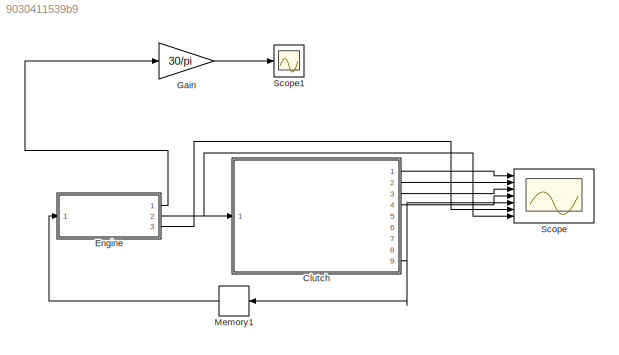
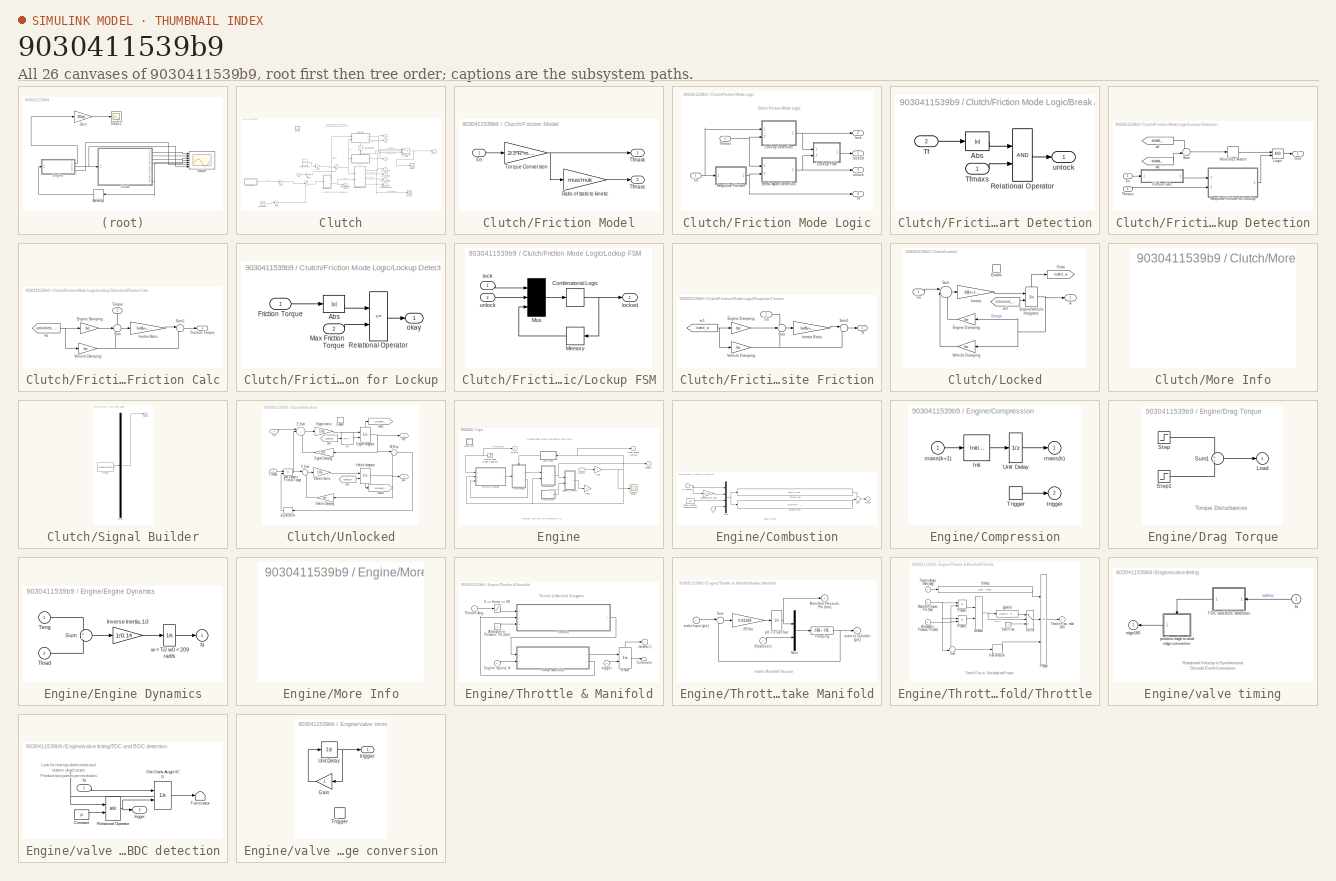
[diagram: thumbnail index - all 26 canvases of the model, root first then tree order]
MODEL slx_9030411539b9
KIND model
CONFIG AbsTol = 1e-7
CONFIG FixedStep = auto
CONFIG MaxStep = auto
CONFIG MinStep = auto
CONFIG PostLoadFcn = %sldemo_clutchplot\nsldemo_clutchparam
CONFIG PreLoadFcn = sldemo_clutchparam
CONFIG RelTol = 1e-6
CONFIG SampleTimeConstraint = Unconstrained
CONFIG Solver = ode23
CONFIG SolverMode = SingleTasking
CONFIG SolverName = ode23
CONFIG StartFcn = %sldemo_clutchplot Start\nsldemo_clutchparam
CONFIG StartTime = 0.0
CONFIG StopFcn = %if exist ('sldemo_clutch_output')\n  % sldemo_clutchplot Stop\n%end
CONFIG StopTime = 15
WORKSPACE source: MATLAB code (in-file)
WORKSPACE code: load sldemo_clutchparam.m;
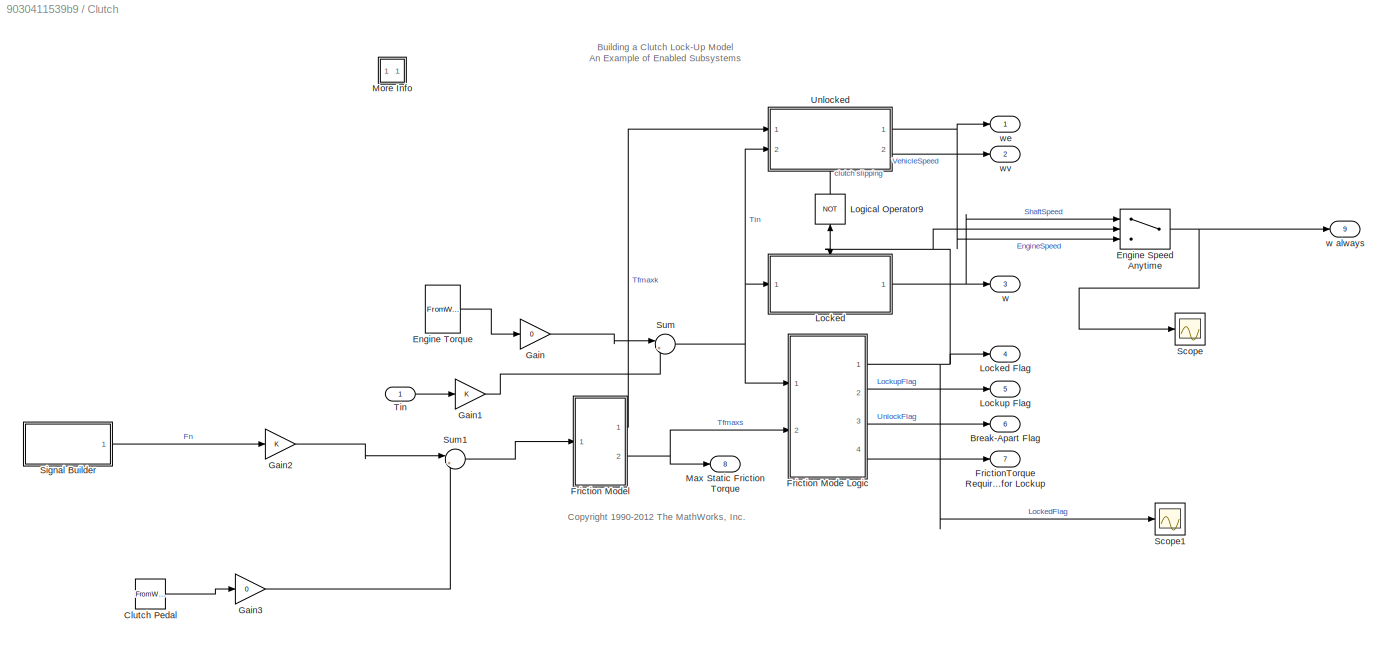
BLOCK [SubSystem] Clutch
  Ports = [1, 9]
  RequestExecContextInheritance = off
  TreatAsAtomicUnit = on
  Variant = off
BLOCK [Outport] Clutch/Break-Apart Flag
  IconDisplay = Port number
  InitialOutput = 0
  Port = 6
BLOCK [FromWorkspace] Clutch/Clutch Pedal
  SampleTime = 0
  VariableName = Fn
BLOCK [Switch] Clutch/Engine Speed Anytime
  Criteria = u2 > Threshold
  InputSameDT = off
  SaturateOnIntegerOverflow = off
BLOCK [FromWorkspace] Clutch/Engine Torque
  SampleTime = 0
  VariableName = Tin
BLOCK [SubSystem] Clutch/Friction Mode Logic
  Ports = [2, 4]
  RequestExecContextInheritance = off
  Variant = off
BLOCK [SubSystem] Clutch/Friction Mode Logic/Break Apart Detection
  Ports = [2, 1]
  RequestExecContextInheritance = off
  Variant = off
BLOCK [Abs] Clutch/Friction Mode Logic/Break Apart Detection/Abs
BLOCK [RelationalOperator] Clutch/Friction Mode Logic/Break Apart Detection/Relational Operator
  OutDataTypeStr = boolean
  Ports = [2, 1]
BLOCK [Inport] Clutch/Friction Mode Logic/Break Apart Detection/Tf
  IconDisplay = Port number
  Port = 2
BLOCK [Inport] Clutch/Friction Mode Logic/Break Apart Detection/Tfmaxs
  IconDisplay = Port number
BLOCK [Outport] Clutch/Friction Mode Logic/Break Apart Detection/unlock
  IconDisplay = Port number
  InitialOutput = 0
BLOCK [SubSystem] Clutch/Friction Mode Logic/Lockup Detection
  Ports = [2, 1]
  RequestExecContextInheritance = off
  Variant = off
BLOCK [SubSystem] Clutch/Friction Mode Logic/Lockup Detection/Friction Calc
  Ports = [1, 1]
  RequestExecContextInheritance = off
  Variant = off
BLOCK [Gain] Clutch/Friction Mode Logic/Lockup Detection/Friction Calc/Engine Damping
  Gain = be
BLOCK [Outport] Clutch/Friction Mode Logic/Lockup Detection/Friction Calc/Friction Torque
  IconDisplay = Port number
  InitialOutput = 0
BLOCK [Gain] Clutch/Friction Mode Logic/Lockup Detection/Friction Calc/Inertia Ratio
  Gain = Iv/(Iv+Ie)
BLOCK [Sum] Clutch/Friction Mode Logic/Lockup Detection/Friction Calc/Sum
  IconShape = round
  Inputs = +--
  Ports = [3, 1]
BLOCK [Sum] Clutch/Friction Mode Logic/Lockup Detection/Friction Calc/Sum1
  IconShape = round
  Inputs = |++
  Ports = [2, 1]
BLOCK [Inport] Clutch/Friction Mode Logic/Lockup Detection/Friction Calc/Torque
  IconDisplay = Port number
BLOCK [Gain] Clutch/Friction Mode Logic/Lockup Detection/Friction Calc/Vehicle Damping
  Gain = bv
BLOCK [From] Clutch/Friction Mode Logic/Lockup Detection/Friction Calc/w1
  GotoTag = unlocked_we
  TagVisibility = global
BLOCK [Logic] Clutch/Friction Mode Logic/Lockup Detection/Logic
  AttributesFormatString = (%<Operator>)
  IconShape = distinctive
  OutDataTypeStr = boolean
  Ports = [2, 1]
BLOCK [SubSystem] Clutch/Friction Mode Logic/Lockup Detection/Required Friction for Lockup
  Ports = [2, 1]
  RequestExecContextInheritance = off
  Variant = off
BLOCK [Abs] Clutch/Friction Mode Logic/Lockup Detection/Required Friction for Lockup/Abs
BLOCK [Inport] Clutch/Friction Mode Logic/Lockup Detection/Required Friction for Lockup/Friction Torque
  IconDisplay = Port number
BLOCK [Inport] Clutch/Friction Mode Logic/Lockup Detection/Required Friction for Lockup/Max Friction Torque
  IconDisplay = Port number
  Port = 2
BLOCK [RelationalOperator] Clutch/Friction Mode Logic/Lockup Detection/Required Friction for Lockup/Relational Operator
  Operator = <=
  OutDataTypeStr = boolean
  Ports = [2, 1]
BLOCK [Outport] Clutch/Friction Mode Logic/Lockup Detection/Required Friction for Lockup/okay
  IconDisplay = Port number
  InitialOutput = 0
BLOCK [Sum] Clutch/Friction Mode Logic/Lockup Detection/Sum
  IconShape = round
  Inputs = +-
  Ports = [2, 1]
BLOCK [Inport] Clutch/Friction Mode Logic/Lockup Detection/Tfmaxs
  IconDisplay = Port number
  Port = 2
BLOCK [Inport] Clutch/Friction Mode Logic/Lockup Detection/Tin
  IconDisplay = Port number
BLOCK [HitCross] Clutch/Friction Mode Logic/Lockup Detection/Velocities Match
  Ports = [1, 1]
BLOCK [Outport] Clutch/Friction Mode Logic/Lockup Detection/lock
  IconDisplay = Port number
  InitialOutput = 0
BLOCK [From] Clutch/Friction Mode Logic/Lockup Detection/w1
  GotoTag = unlocked_we
  TagVisibility = global
BLOCK [From] Clutch/Friction Mode Logic/Lockup Detection/w6
  GotoTag = unlocked_wv
  TagVisibility = global
BLOCK [SubSystem] Clutch/Friction Mode Logic/Lockup FSM
  Ports = [2, 1]
  RequestExecContextInheritance = off
  Variant = off
BLOCK [CombinatorialLogic] Clutch/Friction Mode Logic/Lockup FSM/Combinatorial Logic
  TruthTable = [0;1;0;0;1;1;1;0]
BLOCK [Memory] Clutch/Friction Mode Logic/Lockup FSM/Memory
BLOCK [Mux] Clutch/Friction Mode Logic/Lockup FSM/Mux
  Inputs = 3
  Ports = [3, 1]
BLOCK [Inport] Clutch/Friction Mode Logic/Lockup FSM/lock
  IconDisplay = Port number
BLOCK [Outport] Clutch/Friction Mode Logic/Lockup FSM/locked
  IconDisplay = Port number
  InitialOutput = 0
BLOCK [Inport] Clutch/Friction Mode Logic/Lockup FSM/unlock
  IconDisplay = Port number
  Port = 2
BLOCK [SubSystem] Clutch/Friction Mode Logic/Requisite Friction
  Ports = [1, 1]
  RequestExecContextInheritance = off
  Variant = off
BLOCK [Gain] Clutch/Friction Mode Logic/Requisite Friction/Engine Damping
  Gain = be
BLOCK [Gain] Clutch/Friction Mode Logic/Requisite Friction/Inertia Ratio
  Gain = Iv/(Iv+Ie)
BLOCK [Sum] Clutch/Friction Mode Logic/Requisite Friction/Sum
  IconShape = round
  Inputs = +--
  Ports = [3, 1]
BLOCK [Sum] Clutch/Friction Mode Logic/Requisite Friction/Sum1
  IconShape = round
  Inputs = |++
  Ports = [2, 1]
BLOCK [Outport] Clutch/Friction Mode Logic/Requisite Friction/Tf
  IconDisplay = Port number
  InitialOutput = 0
BLOCK [Inport] Clutch/Friction Mode Logic/Requisite Friction/Tin
  IconDisplay = Port number
BLOCK [Gain] Clutch/Friction Mode Logic/Requisite Friction/Vehicle Damping
  Gain = bv
BLOCK [From] Clutch/Friction Mode Logic/Requisite Friction/w1
  GotoTag = locked_w
  TagVisibility = global
BLOCK [Outport] Clutch/Friction Mode Logic/Tf
  IconDisplay = Port number
  InitialOutput = 0
  Port = 4
BLOCK [Inport] Clutch/Friction Mode Logic/Tfmaxs
  IconDisplay = Port number
  Port = 2
BLOCK [Inport] Clutch/Friction Mode Logic/Tin
  IconDisplay = Port number
BLOCK [Outport] Clutch/Friction Mode Logic/lock
  IconDisplay = Port number
  InitialOutput = 0
  Port = 2
BLOCK [Outport] Clutch/Friction Mode Logic/locked
  IconDisplay = Port number
  InitialOutput = 0
BLOCK [Outport] Clutch/Friction Mode Logic/unlock
  IconDisplay = Port number
  InitialOutput = 0
  Port = 3
BLOCK [SubSystem] Clutch/Friction Model
  Ports = [1, 2]
  RequestExecContextInheritance = off
  Variant = off
BLOCK [Inport] Clutch/Friction Model/Fn
  IconDisplay = Port number
BLOCK [Gain] Clutch/Friction Model/Ratio of static to kinetic
  Gain = mus/muk
BLOCK [Outport] Clutch/Friction Model/Tfmaxk
  IconDisplay = Port number
  InitialOutput = 0
BLOCK [Outport] Clutch/Friction Model/Tfmaxs
  IconDisplay = Port number
  InitialOutput = 0
  Port = 2
BLOCK [Gain] Clutch/Friction Model/Torque Conversion
  Gain = 2/3*R*muk
BLOCK [Outport] Clutch/FrictionTorque Required for Lockup
  IconDisplay = Port number
  InitialOutput = 0
  Port = 7
BLOCK [Gain] Clutch/Gain
  Gain = 0
  OutDataTypeStr = Inherit: Inherit via internal rule
  ParamDataTypeStr = Inherit: Inherit via internal rule
  SaturateOnIntegerOverflow = off
BLOCK [Gain] Clutch/Gain1
  OutDataTypeStr = Inherit: Inherit via internal rule
  ParamDataTypeStr = Inherit: Inherit via internal rule
  SaturateOnIntegerOverflow = off
BLOCK [Gain] Clutch/Gain2
  OutDataTypeStr = Inherit: Inherit via internal rule
  ParamDataTypeStr = Inherit: Inherit via internal rule
  SaturateOnIntegerOverflow = off
BLOCK [Gain] Clutch/Gain3
  Gain = 0
  OutDataTypeStr = Inherit: Inherit via internal rule
  ParamDataTypeStr = Inherit: Inherit via internal rule
  SaturateOnIntegerOverflow = off
BLOCK [SubSystem] Clutch/Locked
  Ports = [1, 1, 1]
  RequestExecContextInheritance = off
  TreatAsAtomicUnit = on
  Variant = off
BLOCK [Outport] Clutch/Locked Flag
  IconDisplay = Port number
  InitialOutput = 0
  Port = 4
BLOCK [EnablePort] Clutch/Locked/Enable
  Ports = []
  StatesWhenEnabling = reset
BLOCK [Gain] Clutch/Locked/Engine Damping
  Gain = be
BLOCK [Integrator] Clutch/Locked/Engine//Vehicle Integrator
  InitialConditionSource = external
  Ports = [2, 1, 0, 0, 1]
  ShowStatePort = on
BLOCK [Goto] Clutch/Locked/Goto
  GotoTag = locked_w
  TagVisibility = global
BLOCK [Gain] Clutch/Locked/Inertia
  Gain = 1/(Iv+Ie)
BLOCK [Sum] Clutch/Locked/Sum
  IconShape = round
  Inputs = ||+--
  Ports = [3, 1]
BLOCK [Inport] Clutch/Locked/Tin
  IconDisplay = Port number
BLOCK [Gain] Clutch/Locked/Vehicle Damping
  Gain = bv
BLOCK [Outport] Clutch/Locked/w
  IconDisplay = Port number
  InitialOutput = 0
BLOCK [From] Clutch/Locked/w0
  GotoTag = unlocked_we
  TagVisibility = global
BLOCK [Outport] Clutch/Lockup Flag
  IconDisplay = Port number
  InitialOutput = 0
  Port = 5
BLOCK [Logic] Clutch/Logical Operator9
  IconShape = distinctive
  Inputs = 1
  Operator = NOT
  OutDataTypeStr = boolean
  Ports = [1, 1]
BLOCK [Outport] Clutch/Max Static Friction Torque
  IconDisplay = Port number
  InitialOutput = 0
  Port = 8
BLOCK [SubSystem] Clutch/More Info
  OpenFcn = showdemo(bdroot(gcb))
  Ports = []
  RequestExecContextInheritance = off
  Variant = off
BLOCK [Scope] Clutch/Scope
  Ports = [1]
  ScopeSpecificationString = Simulink.scopes.TimeScopeBlockCfg('CurrentConfiguration', extmgr.ConfigurationSet(extmgr.Configuration('Core','General UI',true),extmgr.Configuration('Core','Source UI',true),extmgr.Configuration('Sources','WiredSimulink',true,'DataLoggingVariableName','ScopeData2'),extmgr.Configuration('Visuals','Time Domain',true,'SerializedDisplays',{struct('MinYLimReal','158.43083','MaxYLimReal','664.12255','Y...<+1418ch>
BLOCK [Scope] Clutch/Scope1
  Ports = [1]
  ScopeSpecificationString = Simulink.scopes.TimeScopeBlockCfg('CurrentConfiguration', extmgr.ConfigurationSet(extmgr.Configuration('Core','General UI',true),extmgr.Configuration('Core','Source UI',true),extmgr.Configuration('Sources','WiredSimulink',true,'DataLoggingVariableName','ScopeData3'),extmgr.Configuration('Visuals','Time Domain',true,'SerializedDisplays',{struct('MinYLimReal','-0.125','MaxYLimReal','1.125','YLabelRe...<+1383ch>
BLOCK [SubSystem] Clutch/Signal Builder
  ClipboardFcn = sigbuilder_block('clipboard');
  CloseFcn = sigbuilder_block('close');
  ContinueFcn = sigbuilder_block('continue');
  CopyFcn = sigbuilder_block('copy');
  DeleteFcn = sigbuilder_block('delete');
  LoadFcn = sigbuilder_block('load');
  MaskHideContents = on
  ModelCloseFcn = sigbuilder_block('modelClose');
  NameChangeFcn = sigbuilder_block('namechange');
  OpenFcn = sigbuilder_block('open',[6 30 1012.5 447.75 ]);
  PauseFcn = sigbuilder_block('pause');
  Ports = [0, 1]
  PreSaveFcn = sigbuilder_block('preSave');
  RequestExecContextInheritance = off
  StartFcn = sigbuilder_block('start');
  StopFcn = sigbuilder_block('stop');
  Tag = STV Subsys
  Variant = off
BLOCK [Demux] Clutch/Signal Builder/Demux
  Outputs = 1
  Ports = [1, 1]
  Tag = STV Demux
BLOCK [FromWorkspace] Clutch/Signal Builder/FromWs
  SampleTime = 0
  Tag = STV FromWs
  VariableName = tuvar
  ZeroCross = on
BLOCK [Outport] Clutch/Signal Builder/Signal 1
  IconDisplay = Port number
  Tag = STV Outport
BLOCK [Sum] Clutch/Sum
  IconShape = round
  InputSameDT = off
  Inputs = |++
  OutDataTypeStr = Inherit: Inherit via internal rule
  Ports = [2, 1]
  SaturateOnIntegerOverflow = off
BLOCK [Sum] Clutch/Sum1
  IconShape = round
  InputSameDT = off
  Inputs = |++
  OutDataTypeStr = Inherit: Inherit via internal rule
  Ports = [2, 1]
  SaturateOnIntegerOverflow = off
BLOCK [Inport] Clutch/Tin
  IconDisplay = Port number
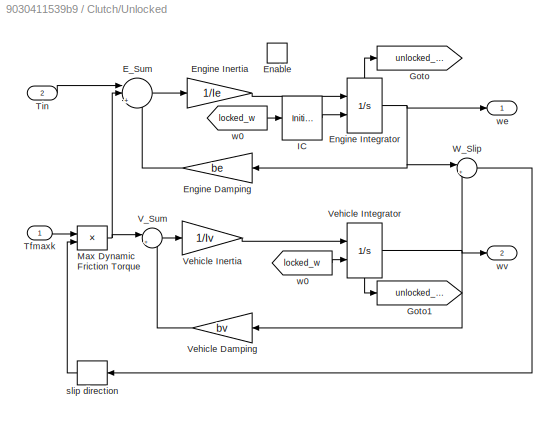
BLOCK [SubSystem] Clutch/Unlocked
  Ports = [2, 2, 1]
  RequestExecContextInheritance = off
  TreatAsAtomicUnit = on
  Variant = off
BLOCK [Sum] Clutch/Unlocked/E_Sum
  IconShape = round
  Inputs = ||+--
  Ports = [3, 1]
BLOCK [EnablePort] Clutch/Unlocked/Enable
  Ports = []
  StatesWhenEnabling = reset
BLOCK [Gain] Clutch/Unlocked/Engine Damping
  Gain = be
BLOCK [Gain] Clutch/Unlocked/Engine Inertia
  Gain = 1/Ie
BLOCK [Integrator] Clutch/Unlocked/Engine Integrator
  InitialConditionSource = external
  Ports = [2, 1, 0, 0, 1]
  ShowStatePort = on
BLOCK [Goto] Clutch/Unlocked/Goto
  GotoTag = unlocked_we
  TagVisibility = global
BLOCK [Goto] Clutch/Unlocked/Goto1
  GotoTag = unlocked_wv
  TagVisibility = global
BLOCK [InitialCondition] Clutch/Unlocked/IC
  Value = 209
BLOCK [Product] Clutch/Unlocked/Max Dynamic Friction Torque
  Ports = [2, 1]
BLOCK [Inport] Clutch/Unlocked/Tfmaxk
  IconDisplay = Port number
BLOCK [Inport] Clutch/Unlocked/Tin
  IconDisplay = Port number
  Port = 2
BLOCK [Sum] Clutch/Unlocked/V_Sum
  IconShape = round
  Inputs = |+-
  Ports = [2, 1]
BLOCK [Gain] Clutch/Unlocked/Vehicle Damping
  Gain = bv
BLOCK [Gain] Clutch/Unlocked/Vehicle Inertia
  Gain = 1/Iv
BLOCK [Integrator] Clutch/Unlocked/Vehicle Integrator
  InitialConditionSource = external
  Ports = [2, 1, 0, 0, 1]
  ShowStatePort = on
BLOCK [Sum] Clutch/Unlocked/W_Slip
  IconShape = round
  Inputs = |+-
  Ports = [2, 1]
BLOCK [Signum] Clutch/Unlocked/slip direction
BLOCK [From] Clutch/Unlocked/w0
  GotoTag = locked_w
  TagVisibility = global
BLOCK [From] Clutch/Unlocked/w0 
  GotoTag = locked_w
  TagVisibility = global
BLOCK [Outport] Clutch/Unlocked/we
  IconDisplay = Port number
  InitialOutput = 0
BLOCK [Outport] Clutch/Unlocked/wv
  IconDisplay = Port number
  InitialOutput = 0
  Port = 2
BLOCK [Outport] Clutch/w
  IconDisplay = Port number
  InitialOutput = 0
  Port = 3
BLOCK [Outport] Clutch/w always 
  IconDisplay = Port number
  InitialOutput = 0
  Port = 9
BLOCK [Outport] Clutch/we
  IconDisplay = Port number
  InitialOutput = 0
BLOCK [Outport] Clutch/wv
  IconDisplay = Port number
  InitialOutput = 0
  Port = 2
BLOCK [SubSystem] Engine
  Ports = [1, 3]
  RequestExecContextInheritance = off
  TreatAsAtomicUnit = on
  Variant = off
BLOCK [SubSystem] Engine/Combustion
  Ports = [2, 1]
  RequestExecContextInheritance = off
  Variant = off
BLOCK [Inport] Engine/Combustion/Air Charge
  IconDisplay = Port number
BLOCK [Mux] Engine/Combustion/Mux
  DisplayOption = bar
  Ports = [4, 1]
BLOCK [Inport] Engine/Combustion/N
  IconDisplay = Port number
  Port = 2
BLOCK [Constant] Engine/Combustion/Spark Advance (degrees BTDC)
  Value = 15.0
BLOCK [Gain] Engine/Combustion/Stoichiometric Fuel
  Gain = 1/14.6
BLOCK [Sum] Engine/Combustion/Sum
  IconShape = round
  Ports = [2, 1]
BLOCK [Outport] Engine/Combustion/Torque
  IconDisplay = Port number
  InitialOutput = 0
BLOCK [Fcn] Engine/Combustion/Torque Gen
  Expr = -181.3 + 379.36*u[1] + 21.91*u[1]/u[2] - (0.85*u[1]*u[1])/(u[2]*u[2]) + 0.26*u[3] - 0.0028*u[3]*u[3]
BLOCK [Fcn] Engine/Combustion/Torque Gen2
  Expr = 0.027*u[4] - 0.000107*u[4]*u[4] + 0.00048*u[4]*u[3] + 2.55*u[3]*u[1] - 0.05*u[3]*u[3]*u[1]
BLOCK [SubSystem] Engine/Compression
  Ports = [1, 2, 0, 1]
  RequestExecContextInheritance = off
  TreatAsAtomicUnit = on
  Variant = off
BLOCK [InitialCondition] Engine/Compression/Init
  Value = 0.152
BLOCK [TriggerPort] Engine/Compression/Trigger
  Ports = [0, 1]
  ShowOutputPort = on
  TriggerType = either
BLOCK [UnitDelay] Engine/Compression/Unit Delay
  InitialCondition = 0.152
  SampleTime = -1
BLOCK [Outport] Engine/Compression/mass(k)
  IconDisplay = Port number
  InitialOutput = 0.152
BLOCK [Inport] Engine/Compression/mass(k+1)
  IconDisplay = Port number
BLOCK [Outport] Engine/Compression/trigger
  IconDisplay = Port number
  InitialOutput = -1
  Port = 2
BLOCK [SubSystem] Engine/Drag Torque
  Ports = [0, 1]
  RequestExecContextInheritance = off
  Variant = off
BLOCK [Outport] Engine/Drag Torque/Load
  IconDisplay = Port number
  InitialOutput = 0
BLOCK [Step] Engine/Drag Torque/Step
  After = 20
  Before = 25
  SampleTime = 0
  Time = 2
BLOCK [Step] Engine/Drag Torque/Step1
  After = 5
  SampleTime = 0
  Time = 8
BLOCK [Sum] Engine/Drag Torque/Sum1
  IconShape = round
  Ports = [2, 1]
BLOCK [SubSystem] Engine/Engine Dynamics
  Ports = [2, 1]
  RequestExecContextInheritance = off
  Variant = off
BLOCK [Gain] Engine/Engine Dynamics/Inverse Inertia, 1//J
  Gain = 1/0.14
BLOCK [Outport] Engine/Engine Dynamics/N
  IconDisplay = Port number
  InitialOutput = 0
BLOCK [Sum] Engine/Engine Dynamics/Sum
  IconShape = round
  Inputs = +-
  Ports = [2, 1]
BLOCK [Inport] Engine/Engine Dynamics/Teng
  IconDisplay = Port number
BLOCK [Inport] Engine/Engine Dynamics/Tload
  IconDisplay = Port number
  Port = 2
BLOCK [Integrator] Engine/Engine Dynamics/w = T//J w0 = 209 rad//s
  InitialCondition = 209.48
  Ports = [1, 1]
BLOCK [Outport] Engine/Engine_t
  IconDisplay = Port number
  InitialOutput = 0
  Port = 2
BLOCK [Gain] Engine/Gain
  OutDataTypeStr = Inherit: Inherit via internal rule
  ParamDataTypeStr = Inherit: Inherit via internal rule
  SaturateOnIntegerOverflow = off
BLOCK [Gain] Engine/Gain1
  Gain = 0
  OutDataTypeStr = Inherit: Inherit via internal rule
  ParamDataTypeStr = Inherit: Inherit via internal rule
  SaturateOnIntegerOverflow = off
BLOCK [SubSystem] Engine/More Info
  OpenFcn = showdemo(bdroot(gcb))
  Ports = []
  RequestExecContextInheritance = off
  Variant = off
BLOCK [Inport] Engine/Nclutch
  IconDisplay = Port number
BLOCK [Scope] Engine/Scope
  Ports = [1]
  ScopeSpecificationString = Simulink.scopes.TimeScopeBlockCfg('CurrentConfiguration', extmgr.ConfigurationSet(extmgr.Configuration('Core','General UI',true),extmgr.Configuration('Core','Source UI',true),extmgr.Configuration('Sources','WiredSimulink',true,'DataLoggingVariableName','ScopeData1','DataLoggingLimitDataPoints',true,'DataLoggingSaveFormat','Array','DataLoggingDecimation','1','DataLoggingDecimateData',true),extmgr.C...<+1736ch>
BLOCK [Outport] Engine/Throttle
  IconDisplay = Port number
  InitialOutput = 0
  Port = 3
BLOCK [SubSystem] Engine/Throttle & Manifold
  Ports = [3, 1]
  RequestExecContextInheritance = off
  Variant = off
BLOCK [Saturate] Engine/Throttle & Manifold/0 <= theta <= 90
  InputPortMap = u0
  LowerLimit = 0
  Ports = [1, 1]
  UpperLimit = 90
BLOCK [Constant] Engine/Throttle & Manifold/Atmospheric Pressure, Pa (bar)
  Value = 1.0
BLOCK [Inport] Engine/Throttle & Manifold/Engine Speed, N
  IconDisplay = Port number
  Port = 2
BLOCK [Integrator] Engine/Throttle & Manifold/Intake
  ExternalReset = either
  Ports = [2, 1, 0, 0, 1]
  ShowStatePort = on
BLOCK [SubSystem] Engine/Throttle & Manifold/Intake Manifold
  Ports = [2, 2]
  RequestExecContextInheritance = off
  Variant = off
BLOCK [Outport] Engine/Throttle & Manifold/Intake Manifold/Manifold Pressure, Pm (bar)
  IconDisplay = Port number
  InitialOutput = 0
  Port = 2
BLOCK [Mux] Engine/Throttle & Manifold/Intake Manifold/Mux
  DisplayOption = bar
  Inputs = 2
  Ports = [2, 1]
BLOCK [Inport] Engine/Throttle & Manifold/Intake Manifold/N (rad//sec)
  IconDisplay = Port number
  Port = 2
BLOCK [Fcn] Engine/Throttle & Manifold/Intake Manifold/Pumping
  Expr = -0.366 + 0.08979*u[1]*u[2] - 0.0337*u[2]*u[1]*u[1] + 0.0001*u[1]*u[2]*u[2]
BLOCK [Gain] Engine/Throttle & Manifold/Intake Manifold/RT//Vm
  Gain = 0.41328
BLOCK [Sum] Engine/Throttle & Manifold/Intake Manifold/Sum
  IconShape = round
  Inputs = |+-
  Ports = [2, 1]
BLOCK [Inport] Engine/Throttle & Manifold/Intake Manifold/mdot Input (g//s)
  IconDisplay = Port number
BLOCK [Outport] Engine/Throttle & Manifold/Intake Manifold/mdot to Cylinder (g//s)
  IconDisplay = Port number
  InitialOutput = 0
BLOCK [Integrator] Engine/Throttle & Manifold/Intake Manifold/p0 = 0.543 bar
  InitialCondition = .543
  Ports = [1, 1]
BLOCK [Terminator] Engine/Throttle & Manifold/Terminator
BLOCK [SubSystem] Engine/Throttle & Manifold/Throttle
  Ports = [3, 1]
  RequestExecContextInheritance = off
  Variant = off
BLOCK [Inport] Engine/Throttle & Manifold/Throttle Ang.
  IconDisplay = Port number
BLOCK [Inport] Engine/Throttle & Manifold/Throttle/Atmospheric Pressure, Pa (bar) 
  IconDisplay = Port number
  Port = 3
BLOCK [Inport] Engine/Throttle & Manifold/Throttle/Manifold Pressure, Pm (bar)
  IconDisplay = Port number
  Port = 2
BLOCK [MinMax] Engine/Throttle & Manifold/Throttle/MinMax
  Inputs = 2
  Ports = [2, 1]
BLOCK [Product] Engine/Throttle & Manifold/Throttle/Product
  Inputs = 3
  Ports = [3, 1]
BLOCK [Product] Engine/Throttle & Manifold/Throttle/Product1
  Inputs = */
  Ports = [2, 1]
BLOCK [Product] Engine/Throttle & Manifold/Throttle/Product2
  Inputs = /*
  Ports = [2, 1]
BLOCK [Constant] Engine/Throttle & Manifold/Throttle/Sonic Flow 
  Value = 1.0
BLOCK [Sum] Engine/Throttle & Manifold/Throttle/Sum
  IconShape = round
  Inputs = +-|
  Ports = [2, 1]
BLOCK [Switch] Engine/Throttle & Manifold/Throttle/Switch
  Threshold = 0.5
BLOCK [Inport] Engine/Throttle & Manifold/Throttle/Throttle Angle, theta (deg)
  IconDisplay = Port number
BLOCK [Outport] Engine/Throttle & Manifold/Throttle/Throttle Flow, mdot (g//s)
  IconDisplay = Port number
  InitialOutput = 0
BLOCK [Fcn] Engine/Throttle & Manifold/Throttle/f(theta)
  Expr = 2.821 - 0.05231*u + 0.10299*u*u - 0.00063*u*u*u
BLOCK [Signum] Engine/Throttle & Manifold/Throttle/flow direction
BLOCK [Fcn] Engine/Throttle & Manifold/Throttle/g(pratio)
  Expr = 2*sqrt(u - u*u)
BLOCK [Outport] Engine/Throttle & Manifold/mass(k+1)
  IconDisplay = Port number
  InitialOutput = 0
BLOCK [Inport] Engine/Throttle & Manifold/trigger
  IconDisplay = Port number
  Port = 3
BLOCK [Step] Engine/Throttle Angle Profiles (degrees)
  After = 20
  Before = 9
  SampleTime = 0
  Time = 5
BLOCK [Outport] Engine/crank speed (rad//sec)
  IconDisplay = Port number
  InitialOutput = 0
BLOCK [SubSystem] Engine/valve timing
  Ports = [1, 1]
  RequestExecContextInheritance = off
  Variant = off
BLOCK [Inport] Engine/valve timing/N
  IconDisplay = Port number
BLOCK [SubSystem] Engine/valve timing/TDC and BDC detection
  Ports = [1, 1]
  RequestExecContextInheritance = off
  Variant = off
BLOCK [Constant] Engine/valve timing/TDC and BDC detection/Constant
  Value = pi
BLOCK [Integrator] Engine/valve timing/TDC and BDC detection/Get Crank Angle IC 0
  ExternalReset = rising
  Ports = [2, 1, 0, 0, 1]
  ShowStatePort = on
BLOCK [Inport] Engine/valve timing/TDC and BDC detection/N
  IconDisplay = Port number
BLOCK [RelationalOperator] Engine/valve timing/TDC and BDC detection/Relational Operator
  OutDataTypeStr = boolean
  Ports = [2, 1]
BLOCK [Terminator] Engine/valve timing/TDC and BDC detection/Terminator
BLOCK [Outport] Engine/valve timing/TDC and BDC detection/trigger
  IconDisplay = Port number
  InitialOutput = 0
BLOCK [Outport] Engine/valve timing/edge180
  IconDisplay = Port number
  InitialOutput = -1
BLOCK [SubSystem] Engine/valve timing/positive edge to dual edge conversion
  Ports = [0, 1, 0, 1]
  RequestExecContextInheritance = off
  TreatAsAtomicUnit = on
  Variant = off
BLOCK [Gain] Engine/valve timing/positive edge to dual edge conversion/Gain
  Gain = -1
BLOCK [TriggerPort] Engine/valve timing/positive edge to dual edge conversion/Trigger
  Ports = []
BLOCK [UnitDelay] Engine/valve timing/positive edge to dual edge conversion/Unit Delay
  InitialCondition = 1
  SampleTime = -1
BLOCK [Outport] Engine/valve timing/positive edge to dual edge conversion/trigger
  IconDisplay = Port number
  InitialOutput = -1
BLOCK [Gain] Gain
  Gain = 30/pi
  OutDataTypeStr = Inherit: Inherit via internal rule
  ParamDataTypeStr = Inherit: Inherit via internal rule
  SaturateOnIntegerOverflow = off
BLOCK [Memory] Memory1
  InheritSampleTime = on
BLOCK [Scope] Scope
  NumInputPorts = 7
  Ports = [7]
  ScopeSpecificationString = Simulink.scopes.TimeScopeBlockCfg('CurrentConfiguration', extmgr.ConfigurationSet(extmgr.Configuration('Core','General UI',true),extmgr.Configuration('Core','Source UI',true),extmgr.Configuration('Sources','WiredSimulink',true,'DataLoggingLimitDataPoints',true,'DataLoggingSaveFormat','Array','DataLoggingDecimation','1','DataLoggingDecimateData',true),extmgr.Configuration('Visuals','Time Domain',tr...<+6512ch>
BLOCK [Scope] Scope1
  Ports = [1]
  ScopeSpecificationString = Simulink.scopes.TimeScopeBlockCfg('CurrentConfiguration', extmgr.ConfigurationSet(extmgr.Configuration('Core','General UI',true),extmgr.Configuration('Core','Source UI',true),extmgr.Configuration('Sources','WiredSimulink',true,'DataLoggingVariableName','ScopeData4'),extmgr.Configuration('Visuals','Time Domain',true,'SerializedDisplays',{struct('MinYLimReal','-728.97784','MaxYLimReal','6560.80053',...<+1452ch>
ANNOTATION Clutch: Building a Clutch Lock-Up Model An Example of Enabled Subsystems
ANNOTATION Clutch: <copyright redacted>
ANNOTATION Clutch/Friction Mode Logic: Clutch Friction Mode Logic
ANNOTATION Engine: <copyright redacted>
ANNOTATION Engine: Modeling Engine Timing UsingTriggered Subsystems
ANNOTATION Engine/Combustion: Engine Torque
ANNOTATION Engine/Drag Torque: Torque Disturbances
ANNOTATION Engine/Throttle & Manifold: Throttle & Manifold Subsystem
ANNOTATION Engine/Throttle & Manifold/Intake Manifold: Intake Manifold Vacuum
ANNOTATION Engine/Throttle & Manifold/Throttle: Throttle Flow vs. Valve Angle and Pressure
ANNOTATION Engine/valve timing: Rotational Velocity to Synchronized Discrete Event Conversion
ANNOTATION Engine/valve timing/TDC and BDC detection: Look for next top dead center.and bottom dead center. Produce two pulses per revolution.
LINE Clutch/Clutch Pedal:1 -> Clutch/Gain3:1
NET Clutch/Engine Speed Anytime:1 -> Clutch/Scope:1, Clutch/w always :1
LINE Clutch/Engine Torque:1 -> Clutch/Gain:1
LINE Clutch/Friction Mode Logic/Break Apart Detection/Abs:1 -> Clutch/Friction Mode Logic/Break Apart Detection/Relational Operator:1
LINE Clutch/Friction Mode Logic/Break Apart Detection/Relational Operator:1 -> Clutch/Friction Mode Logic/Break Apart Detection/unlock:1
LINE Clutch/Friction Mode Logic/Break Apart Detection/Tf:1 -> Clutch/Friction Mode Logic/Break Apart Detection/Abs:1
LINE Clutch/Friction Mode Logic/Break Apart Detection/Tfmaxs:1 -> Clutch/Friction Mode Logic/Break Apart Detection/Relational Operator:2
NET Clutch/Friction Mode Logic/Break Apart Detection:1 -> Clutch/Friction Mode Logic/Lockup FSM:2, Clutch/Friction Mode Logic/unlock:1
LINE Clutch/Friction Mode Logic/Lockup Detection/Friction Calc/Engine Damping:1 -> Clutch/Friction Mode Logic/Lockup Detection/Friction Calc/Sum:2
LINE Clutch/Friction Mode Logic/Lockup Detection/Friction Calc/Inertia Ratio:1 -> Clutch/Friction Mode Logic/Lockup Detection/Friction Calc/Sum1:1
LINE Clutch/Friction Mode Logic/Lockup Detection/Friction Calc/Sum1:1 -> Clutch/Friction Mode Logic/Lockup Detection/Friction Calc/Friction Torque:1
LINE Clutch/Friction Mode Logic/Lockup Detection/Friction Calc/Sum:1 -> Clutch/Friction Mode Logic/Lockup Detection/Friction Calc/Inertia Ratio:1
LINE Clutch/Friction Mode Logic/Lockup Detection/Friction Calc/Torque:1 -> Clutch/Friction Mode Logic/Lockup Detection/Friction Calc/Sum:1
NET Clutch/Friction Mode Logic/Lockup Detection/Friction Calc/Vehicle Damping:1 -> Clutch/Friction Mode Logic/Lockup Detection/Friction Calc/Sum1:2, Clutch/Friction Mode Logic/Lockup Detection/Friction Calc/Sum:3
NET Clutch/Friction Mode Logic/Lockup Detection/Friction Calc/w1:1 -> Clutch/Friction Mode Logic/Lockup Detection/Friction Calc/Engine Damping:1, Clutch/Friction Mode Logic/Lockup Detection/Friction Calc/Vehicle Damping:1
LINE Clutch/Friction Mode Logic/Lockup Detection/Friction Calc:1 -> Clutch/Friction Mode Logic/Lockup Detection/Required Friction for Lockup:1
LINE Clutch/Friction Mode Logic/Lockup Detection/Logic:1 -> Clutch/Friction Mode Logic/Lockup Detection/lock:1
LINE Clutch/Friction Mode Logic/Lockup Detection/Required Friction for Lockup/Abs:1 -> Clutch/Friction Mode Logic/Lockup Detection/Required Friction for Lockup/Relational Operator:1
LINE Clutch/Friction Mode Logic/Lockup Detection/Required Friction for Lockup/Friction Torque:1 -> Clutch/Friction Mode Logic/Lockup Detection/Required Friction for Lockup/Abs:1
LINE Clutch/Friction Mode Logic/Lockup Detection/Required Friction for Lockup/Max Friction Torque:1 -> Clutch/Friction Mode Logic/Lockup Detection/Required Friction for Lockup/Relational Operator:2
LINE Clutch/Friction Mode Logic/Lockup Detection/Required Friction for Lockup/Relational Operator:1 -> Clutch/Friction Mode Logic/Lockup Detection/Required Friction for Lockup/okay:1
LINE Clutch/Friction Mode Logic/Lockup Detection/Required Friction for Lockup:1 -> Clutch/Friction Mode Logic/Lockup Detection/Logic:2
LINE Clutch/Friction Mode Logic/Lockup Detection/Sum:1 -> Clutch/Friction Mode Logic/Lockup Detection/Velocities Match:1
LINE Clutch/Friction Mode Logic/Lockup Detection/Tfmaxs:1 -> Clutch/Friction Mode Logic/Lockup Detection/Required Friction for Lockup:2
LINE Clutch/Friction Mode Logic/Lockup Detection/Tin:1 -> Clutch/Friction Mode Logic/Lockup Detection/Friction Calc:1
LINE Clutch/Friction Mode Logic/Lockup Detection/Velocities Match:1 -> Clutch/Friction Mode Logic/Lockup Detection/Logic:1
LINE Clutch/Friction Mode Logic/Lockup Detection/w1:1 -> Clutch/Friction Mode Logic/Lockup Detection/Sum:1
LINE Clutch/Friction Mode Logic/Lockup Detection/w6:1 -> Clutch/Friction Mode Logic/Lockup Detection/Sum:2
NET Clutch/Friction Mode Logic/Lockup Detection:1 -> Clutch/Friction Mode Logic/Lockup FSM:1, Clutch/Friction Mode Logic/lock:1
NET Clutch/Friction Mode Logic/Lockup FSM/Combinatorial Logic:1 -> Clutch/Friction Mode Logic/Lockup FSM/Memory:1, Clutch/Friction Mode Logic/Lockup FSM/locked:1
LINE Clutch/Friction Mode Logic/Lockup FSM/Memory:1 -> Clutch/Friction Mode Logic/Lockup FSM/Mux:3
LINE Clutch/Friction Mode Logic/Lockup FSM/Mux:1 -> Clutch/Friction Mode Logic/Lockup FSM/Combinatorial Logic:1
LINE Clutch/Friction Mode Logic/Lockup FSM/lock:1 -> Clutch/Friction Mode Logic/Lockup FSM/Mux:1
LINE Clutch/Friction Mode Logic/Lockup FSM/unlock:1 -> Clutch/Friction Mode Logic/Lockup FSM/Mux:2
LINE Clutch/Friction Mode Logic/Lockup FSM:1 -> Clutch/Friction Mode Logic/locked:1
LINE Clutch/Friction Mode Logic/Requisite Friction/Engine Damping:1 -> Clutch/Friction Mode Logic/Requisite Friction/Sum:2
LINE Clutch/Friction Mode Logic/Requisite Friction/Inertia Ratio:1 -> Clutch/Friction Mode Logic/Requisite Friction/Sum1:1
LINE Clutch/Friction Mode Logic/Requisite Friction/Sum1:1 -> Clutch/Friction Mode Logic/Requisite Friction/Tf:1
LINE Clutch/Friction Mode Logic/Requisite Friction/Sum:1 -> Clutch/Friction Mode Logic/Requisite Friction/Inertia Ratio:1
LINE Clutch/Friction Mode Logic/Requisite Friction/Tin:1 -> Clutch/Friction Mode Logic/Requisite Friction/Sum:1
NET Clutch/Friction Mode Logic/Requisite Friction/Vehicle Damping:1 -> Clutch/Friction Mode Logic/Requisite Friction/Sum1:2, Clutch/Friction Mode Logic/Requisite Friction/Sum:3
NET Clutch/Friction Mode Logic/Requisite Friction/w1:1 -> Clutch/Friction Mode Logic/Requisite Friction/Engine Damping:1, Clutch/Friction Mode Logic/Requisite Friction/Vehicle Damping:1
NET Clutch/Friction Mode Logic/Requisite Friction:1 -> Clutch/Friction Mode Logic/Break Apart Detection:2, Clutch/Friction Mode Logic/Tf:1
NET Clutch/Friction Mode Logic/Tfmaxs:1 -> Clutch/Friction Mode Logic/Break Apart Detection:1, Clutch/Friction Mode Logic/Lockup Detection:2
NET Clutch/Friction Mode Logic/Tin:1 -> Clutch/Friction Mode Logic/Lockup Detection:1, Clutch/Friction Mode Logic/Requisite Friction:1
NET Clutch/Friction Mode Logic:1 -> Clutch/Engine Speed Anytime:2, Clutch/Locked Flag:1, Clutch/Locked:enable, Clutch/Logical Operator9:1, Clutch/Scope1:1
LINE Clutch/Friction Mode Logic:2 -> Clutch/Lockup Flag:1
LINE Clutch/Friction Mode Logic:3 -> Clutch/Break-Apart Flag:1
LINE Clutch/Friction Mode Logic:4 -> Clutch/FrictionTorque Required for Lockup:1
LINE Clutch/Friction Model/Fn:1 -> Clutch/Friction Model/Torque Conversion:1
LINE Clutch/Friction Model/Ratio of static to kinetic:1 -> Clutch/Friction Model/Tfmaxs:1
NET Clutch/Friction Model/Torque Conversion:1 -> Clutch/Friction Model/Ratio of static to kinetic:1, Clutch/Friction Model/Tfmaxk:1
LINE Clutch/Friction Model:1 -> Clutch/Unlocked:1
NET Clutch/Friction Model:2 -> Clutch/Friction Mode Logic:2, Clutch/Max Static Friction Torque:1
LINE Clutch/Gain1:1 -> Clutch/Sum:2
LINE Clutch/Gain2:1 -> Clutch/Sum1:1
LINE Clutch/Gain3:1 -> Clutch/Sum1:2
LINE Clutch/Gain:1 -> Clutch/Sum:1
LINE Clutch/Locked/Engine Damping:1 -> Clutch/Locked/Sum:3
NET Clutch/Locked/Engine//Vehicle Integrator:1 -> Clutch/Locked/Engine Damping:1, Clutch/Locked/Vehicle Damping:1, Clutch/Locked/w:1
LINE Clutch/Locked/Engine//Vehicle Integrator:state -> Clutch/Locked/Goto:1
LINE Clutch/Locked/Inertia:1 -> Clutch/Locked/Engine//Vehicle Integrator:1
LINE Clutch/Locked/Sum:1 -> Clutch/Locked/Inertia:1
LINE Clutch/Locked/Tin:1 -> Clutch/Locked/Sum:1
LINE Clutch/Locked/Vehicle Damping:1 -> Clutch/Locked/Sum:2
LINE Clutch/Locked/w0:1 -> Clutch/Locked/Engine//Vehicle Integrator:2
NET Clutch/Locked:1 -> Clutch/Engine Speed Anytime:1, Clutch/w:1
LINE Clutch/Logical Operator9:1 -> Clutch/Unlocked:enable
LINE Clutch/Signal Builder:1 -> Clutch/Gain2:1
LINE Clutch/Sum1:1 -> Clutch/Friction Model:1
NET Clutch/Sum:1 -> Clutch/Friction Mode Logic:1, Clutch/Locked:1, Clutch/Unlocked:2
LINE Clutch/Tin:1 -> Clutch/Gain1:1
LINE Clutch/Unlocked/E_Sum:1 -> Clutch/Unlocked/Engine Inertia:1
LINE Clutch/Unlocked/Engine Damping:1 -> Clutch/Unlocked/E_Sum:3
LINE Clutch/Unlocked/Engine Inertia:1 -> Clutch/Unlocked/Engine Integrator:1
NET Clutch/Unlocked/Engine Integrator:1 -> Clutch/Unlocked/Engine Damping:1, Clutch/Unlocked/W_Slip:1, Clutch/Unlocked/we:1
LINE Clutch/Unlocked/Engine Integrator:state -> Clutch/Unlocked/Goto:1
LINE Clutch/Unlocked/IC:1 -> Clutch/Unlocked/Engine Integrator:2
NET Clutch/Unlocked/Max Dynamic Friction Torque:1 -> Clutch/Unlocked/E_Sum:2, Clutch/Unlocked/V_Sum:1
LINE Clutch/Unlocked/Tfmaxk:1 -> Clutch/Unlocked/Max Dynamic Friction Torque:1
LINE Clutch/Unlocked/Tin:1 -> Clutch/Unlocked/E_Sum:1
LINE Clutch/Unlocked/V_Sum:1 -> Clutch/Unlocked/Vehicle Inertia:1
LINE Clutch/Unlocked/Vehicle Damping:1 -> Clutch/Unlocked/V_Sum:2
LINE Clutch/Unlocked/Vehicle Inertia:1 -> Clutch/Unlocked/Vehicle Integrator:1
NET Clutch/Unlocked/Vehicle Integrator:1 -> Clutch/Unlocked/Vehicle Damping:1, Clutch/Unlocked/W_Slip:2, Clutch/Unlocked/wv:1
LINE Clutch/Unlocked/Vehicle Integrator:state -> Clutch/Unlocked/Goto1:1
LINE Clutch/Unlocked/W_Slip:1 -> Clutch/Unlocked/slip direction:1
LINE Clutch/Unlocked/slip direction:1 -> Clutch/Unlocked/Max Dynamic Friction Torque:2
LINE Clutch/Unlocked/w0 :1 -> Clutch/Unlocked/IC:1
LINE Clutch/Unlocked/w0:1 -> Clutch/Unlocked/Vehicle Integrator:2
NET Clutch/Unlocked:1 -> Clutch/Engine Speed Anytime:3, Clutch/we:1
LINE Clutch/Unlocked:2 -> Clutch/wv:1
LINE Clutch:1 -> Scope:1
LINE Clutch:2 -> Scope:2
LINE Clutch:3 -> Scope:3
LINE Clutch:4 -> Scope:4
NET Clutch:9 -> Memory1:1, Scope:5
NET Engine/Combustion/Air Charge:1 -> Engine/Combustion/Mux:1, Engine/Combustion/Stoichiometric Fuel:1
NET Engine/Combustion/Mux:1 -> Engine/Combustion/Torque Gen2:1, Engine/Combustion/Torque Gen:1
LINE Engine/Combustion/N:1 -> Engine/Combustion/Mux:4
LINE Engine/Combustion/Spark Advance (degrees BTDC):1 -> Engine/Combustion/Mux:3
LINE Engine/Combustion/Stoichiometric Fuel:1 -> Engine/Combustion/Mux:2
LINE Engine/Combustion/Sum:1 -> Engine/Combustion/Torque:1
LINE Engine/Combustion/Torque Gen2:1 -> Engine/Combustion/Sum:2
LINE Engine/Combustion/Torque Gen:1 -> Engine/Combustion/Sum:1
NET Engine/Combustion:1 -> Engine/Engine Dynamics:1, Engine/Engine_t:1
LINE Engine/Compression/Init:1 -> Engine/Compression/Unit Delay:1
LINE Engine/Compression/Trigger:1 -> Engine/Compression/trigger:1
LINE Engine/Compression/Unit Delay:1 -> Engine/Compression/mass(k):1
LINE Engine/Compression/mass(k+1):1 -> Engine/Compression/Init:1
LINE Engine/Compression:1 -> Engine/Combustion:1
LINE Engine/Compression:2 -> Engine/Throttle & Manifold:3
LINE Engine/Drag Torque/Step1:1 -> Engine/Drag Torque/Sum1:2
LINE Engine/Drag Torque/Step:1 -> Engine/Drag Torque/Sum1:1
LINE Engine/Drag Torque/Sum1:1 -> Engine/Drag Torque/Load:1
LINE Engine/Drag Torque:1 -> Engine/Engine Dynamics:2
LINE Engine/Engine Dynamics/Inverse Inertia, 1//J:1 -> Engine/Engine Dynamics/w = T//J w0 = 209 rad//s:1
LINE Engine/Engine Dynamics/Sum:1 -> Engine/Engine Dynamics/Inverse Inertia, 1//J:1
LINE Engine/Engine Dynamics/Teng:1 -> Engine/Engine Dynamics/Sum:1
LINE Engine/Engine Dynamics/Tload:1 -> Engine/Engine Dynamics/Sum:2
LINE Engine/Engine Dynamics/w = T//J w0 = 209 rad//s:1 -> Engine/Engine Dynamics/N:1
LINE Engine/Engine Dynamics:1 -> Engine/Gain1:1
NET Engine/Gain:1 -> Engine/Combustion:2, Engine/Scope:1, Engine/Throttle & Manifold:2, Engine/crank speed (rad//sec):1, Engine/valve timing:1
LINE Engine/Nclutch:1 -> Engine/Gain:1
LINE Engine/Throttle & Manifold/0 <= theta <= 90:1 -> Engine/Throttle & Manifold/Throttle:1
LINE Engine/Throttle & Manifold/Atmospheric Pressure, Pa (bar):1 -> Engine/Throttle & Manifold/Throttle:3
LINE Engine/Throttle & Manifold/Engine Speed, N:1 -> Engine/Throttle & Manifold/Intake Manifold:2
LINE Engine/Throttle & Manifold/Intake Manifold/Mux:1 -> Engine/Throttle & Manifold/Intake Manifold/Pumping:1
LINE Engine/Throttle & Manifold/Intake Manifold/N (rad//sec):1 -> Engine/Throttle & Manifold/Intake Manifold/Mux:2
NET Engine/Throttle & Manifold/Intake Manifold/Pumping:1 -> Engine/Throttle & Manifold/Intake Manifold/Sum:2, Engine/Throttle & Manifold/Intake Manifold/mdot to Cylinder (g//s):1
LINE Engine/Throttle & Manifold/Intake Manifold/RT//Vm:1 -> Engine/Throttle & Manifold/Intake Manifold/p0 = 0.543 bar:1
LINE Engine/Throttle & Manifold/Intake Manifold/Sum:1 -> Engine/Throttle & Manifold/Intake Manifold/RT//Vm:1
LINE Engine/Throttle & Manifold/Intake Manifold/mdot Input (g//s):1 -> Engine/Throttle & Manifold/Intake Manifold/Sum:1
NET Engine/Throttle & Manifold/Intake Manifold/p0 = 0.543 bar:1 -> Engine/Throttle & Manifold/Intake Manifold/Manifold Pressure, Pm (bar):1, Engine/Throttle & Manifold/Intake Manifold/Mux:1
LINE Engine/Throttle & Manifold/Intake Manifold:1 -> Engine/Throttle & Manifold/Intake:1
LINE Engine/Throttle & Manifold/Intake Manifold:2 -> Engine/Throttle & Manifold/Throttle:2
LINE Engine/Throttle & Manifold/Intake:1 -> Engine/Throttle & Manifold/Terminator:1
LINE Engine/Throttle & Manifold/Intake:state -> Engine/Throttle & Manifold/mass(k+1):1
LINE Engine/Throttle & Manifold/Throttle Ang.:1 -> Engine/Throttle & Manifold/0 <= theta <= 90:1
NET Engine/Throttle & Manifold/Throttle/Atmospheric Pressure, Pa (bar) :1 -> Engine/Throttle & Manifold/Throttle/Product1:2, Engine/Throttle & Manifold/Throttle/Product2:2, Engine/Throttle & Manifold/Throttle/Sum:1
NET Engine/Throttle & Manifold/Throttle/Manifold Pressure, Pm (bar):1 -> Engine/Throttle & Manifold/Throttle/Product1:1, Engine/Throttle & Manifold/Throttle/Product2:1, Engine/Throttle & Manifold/Throttle/Sum:2
NET Engine/Throttle & Manifold/Throttle/MinMax:1 -> Engine/Throttle & Manifold/Throttle/Switch:2, Engine/Throttle & Manifold/Throttle/g(pratio):1
LINE Engine/Throttle & Manifold/Throttle/Product1:1 -> Engine/Throttle & Manifold/Throttle/MinMax:1
LINE Engine/Throttle & Manifold/Throttle/Product2:1 -> Engine/Throttle & Manifold/Throttle/MinMax:2
LINE Engine/Throttle & Manifold/Throttle/Product:1 -> Engine/Throttle & Manifold/Throttle/Throttle Flow, mdot (g//s):1
LINE Engine/Throttle & Manifold/Throttle/Sonic Flow :1 -> Engine/Throttle & Manifold/Throttle/Switch:3
LINE Engine/Throttle & Manifold/Throttle/Sum:1 -> Engine/Throttle & Manifold/Throttle/flow direction:1
LINE Engine/Throttle & Manifold/Throttle/Switch:1 -> Engine/Throttle & Manifold/Throttle/Product:2
LINE Engine/Throttle & Manifold/Throttle/Throttle Angle, theta (deg):1 -> Engine/Throttle & Manifold/Throttle/f(theta):1
LINE Engine/Throttle & Manifold/Throttle/f(theta):1 -> Engine/Throttle & Manifold/Throttle/Product:1
LINE Engine/Throttle & Manifold/Throttle/flow direction:1 -> Engine/Throttle & Manifold/Throttle/Product:3
LINE Engine/Throttle & Manifold/Throttle/g(pratio):1 -> Engine/Throttle & Manifold/Throttle/Switch:1
LINE Engine/Throttle & Manifold/Throttle:1 -> Engine/Throttle & Manifold/Intake Manifold:1
LINE Engine/Throttle & Manifold/trigger:1 -> Engine/Throttle & Manifold/Intake:2
LINE Engine/Throttle & Manifold:1 -> Engine/Compression:1
NET Engine/Throttle Angle Profiles (degrees):1 -> Engine/Throttle & Manifold:1, Engine/Throttle:1
LINE Engine/valve timing/N:1 -> Engine/valve timing/TDC and BDC detection:1
LINE Engine/valve timing/TDC and BDC detection/Constant:1 -> Engine/valve timing/TDC and BDC detection/Relational Operator:2
LINE Engine/valve timing/TDC and BDC detection/Get Crank Angle IC 0:1 -> Engine/valve timing/TDC and BDC detection/Terminator:1
LINE Engine/valve timing/TDC and BDC detection/Get Crank Angle IC 0:state -> Engine/valve timing/TDC and BDC detection/Relational Operator:1
LINE Engine/valve timing/TDC and BDC detection/N:1 -> Engine/valve timing/TDC and BDC detection/Get Crank Angle IC 0:1
NET Engine/valve timing/TDC and BDC detection/Relational Operator:1 -> Engine/valve timing/TDC and BDC detection/Get Crank Angle IC 0:2, Engine/valve timing/TDC and BDC detection/trigger:1
LINE Engine/valve timing/TDC and BDC detection:1 -> Engine/valve timing/positive edge to dual edge conversion:trigger
LINE Engine/valve timing/positive edge to dual edge conversion/Gain:1 -> Engine/valve timing/positive edge to dual edge conversion/Unit Delay:1
NET Engine/valve timing/positive edge to dual edge conversion/Unit Delay:1 -> Engine/valve timing/positive edge to dual edge conversion/Gain:1, Engine/valve timing/positive edge to dual edge conversion/trigger:1
LINE Engine/valve timing/positive edge to dual edge conversion:1 -> Engine/valve timing/edge180:1
LINE Engine/valve timing:1 -> Engine/Compression:trigger
LINE Engine:1 -> Gain:1
NET Engine:2 -> Clutch:1, Scope:7
LINE Engine:3 -> Scope:6
LINE Gain:1 -> Scope1:1
LINE Memory1:1 -> Engine:1
note: NET lines group one-source signal fan-out (src -> all destinations, sorted); 1:1 wires keep LINE
